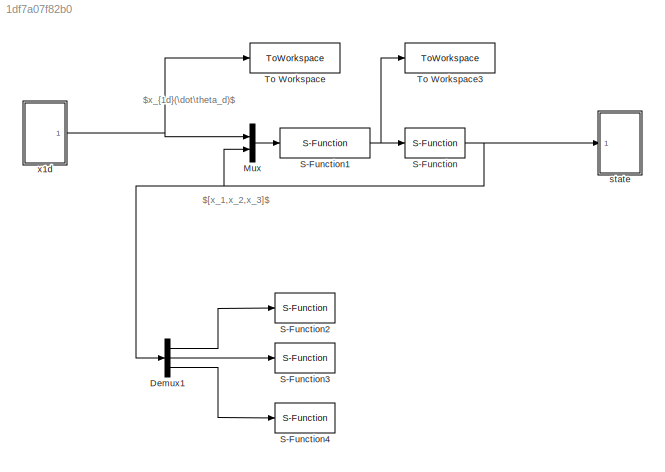
MODEL slx_1df7a07f82b0
KIND model
CONFIG AbsTol = auto
CONFIG EnableMultiTasking = off
CONFIG FixedStep = 10^(-4)
CONFIG MaxStep = 10-4
CONFIG MinStep = auto
CONFIG RelTol = 1e-3
CONFIG SampleTimeConstraint = Unconstrained
CONFIG SolverName = ode8
CONFIG StartTime = 0.0
CONFIG StopTime = 10
BLOCK [Demux] Demux1
  Outputs = 3
  Ports = [1, 3]
BLOCK [Mux] Mux
  DisplayOption = bar
  Inputs = 2
  Ports = [2, 1]
BLOCK [S-Function] S-Function
  EnableBusSupport = off
  FunctionName = motor_plant
  Ports = [1, 1]
  SFcnIsStateOwnerBlock = off
  SFunctionDeploymentMode = off
BLOCK [S-Function] S-Function1
  EnableBusSupport = off
  FunctionName = motor_controller
  Ports = [1, 1]
  SFcnIsStateOwnerBlock = off
  SFunctionDeploymentMode = off
BLOCK [S-Function] S-Function2
  EnableBusSupport = off
  FunctionName = hosmo_x1_3
  Ports = [1, 1]
  SFcnIsStateOwnerBlock = off
  SFunctionDeploymentMode = off
BLOCK [S-Function] S-Function3
  EnableBusSupport = off
  FunctionName = hosmo_x2_2
  Ports = [1, 1]
  SFcnIsStateOwnerBlock = off
  SFunctionDeploymentMode = off
BLOCK [S-Function] S-Function4
  EnableBusSupport = off
  FunctionName = hosmp_x3_1
  Ports = [1, 1]
  SFcnIsStateOwnerBlock = off
  SFunctionDeploymentMode = off
BLOCK [ToWorkspace] To Workspace
  FixptAsFi = on
  MaxDataPoints = inf
  Ports = [1]
  SampleTime = -1
  SaveFormat = Timeseries
  VariableName = x1d
BLOCK [ToWorkspace] To Workspace3
  FixptAsFi = on
  MaxDataPoints = inf
  Ports = [1]
  SampleTime = -1
  SaveFormat = Timeseries
  VariableName = u
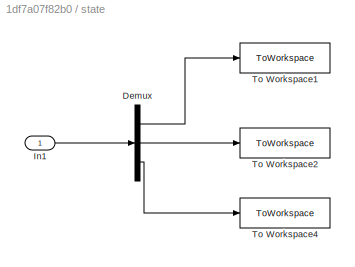
BLOCK [SubSystem] state
  Ports = [1]
  RequestExecContextInheritance = off
BLOCK [Demux] state/Demux
  Outputs = 3
  Ports = [1, 3]
BLOCK [Inport] state/In1
BLOCK [ToWorkspace] state/To Workspace1
  FixptAsFi = on
  MaxDataPoints = inf
  Ports = [1]
  SampleTime = -1
  SaveFormat = Timeseries
  VariableName = x1
BLOCK [ToWorkspace] state/To Workspace2
  FixptAsFi = on
  MaxDataPoints = inf
  Ports = [1]
  SampleTime = -1
  SaveFormat = Timeseries
  VariableName = x2
BLOCK [ToWorkspace] state/To Workspace4
  FixptAsFi = on
  MaxDataPoints = inf
  Ports = [1]
  SampleTime = -1
  SaveFormat = Timeseries
  VariableName = x3
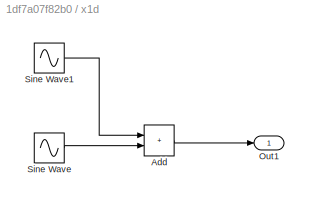
BLOCK [SubSystem] x1d
  Ports = [0, 1]
  RequestExecContextInheritance = off
BLOCK [Sum] x1d/Add
  IconShape = rectangular
  Ports = [2, 1]
BLOCK [Outport] x1d/Out1
BLOCK [Sin] x1d/Sine Wave
  Amplitude = 0.5
  Ports = [0, 1]
  SampleTime = 0
BLOCK [Sin] x1d/Sine Wave1
  Amplitude = 0.5
  Frequency = 0.5
  Ports = [0, 1]
  SampleTime = 0
ANNOTATION (root): $[x_1,x_2,x_3]$
ANNOTATION (root): $x_{1d}(\dot\theta_d)$
LINE Demux1:1 -> S-Function2:1
LINE Demux1:2 -> S-Function3:1
LINE Demux1:3 -> S-Function4:1
LINE Mux:1 -> S-Function1:1
NET S-Function1:1 -> S-Function:1, To Workspace3:1
NET S-Function:1 -> Demux1:1, Mux:2, state:1
LINE state/Demux:1 -> state/To Workspace1:1
LINE state/Demux:2 -> state/To Workspace2:1
LINE state/Demux:3 -> state/To Workspace4:1
LINE state/In1:1 -> state/Demux:1
LINE x1d/Add:1 -> x1d/Out1:1
LINE x1d/Sine Wave1:1 -> x1d/Add:1
LINE x1d/Sine Wave:1 -> x1d/Add:2
NET x1d:1 -> Mux:1, To Workspace:1
note: NET lines group one-source signal fan-out (src -> all destinations, sorted); 1:1 wires keep LINE
